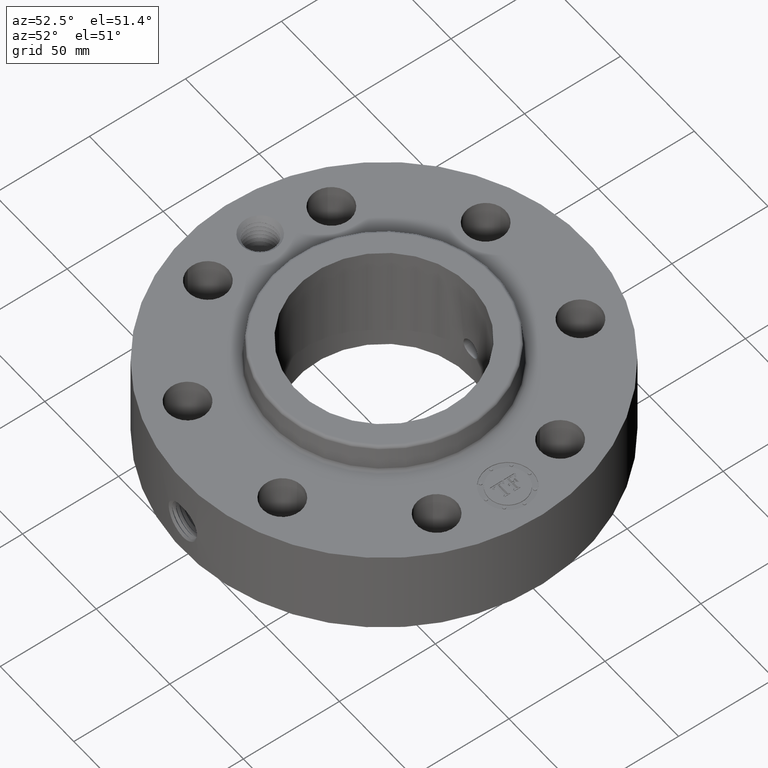
[diagram: clean part render]
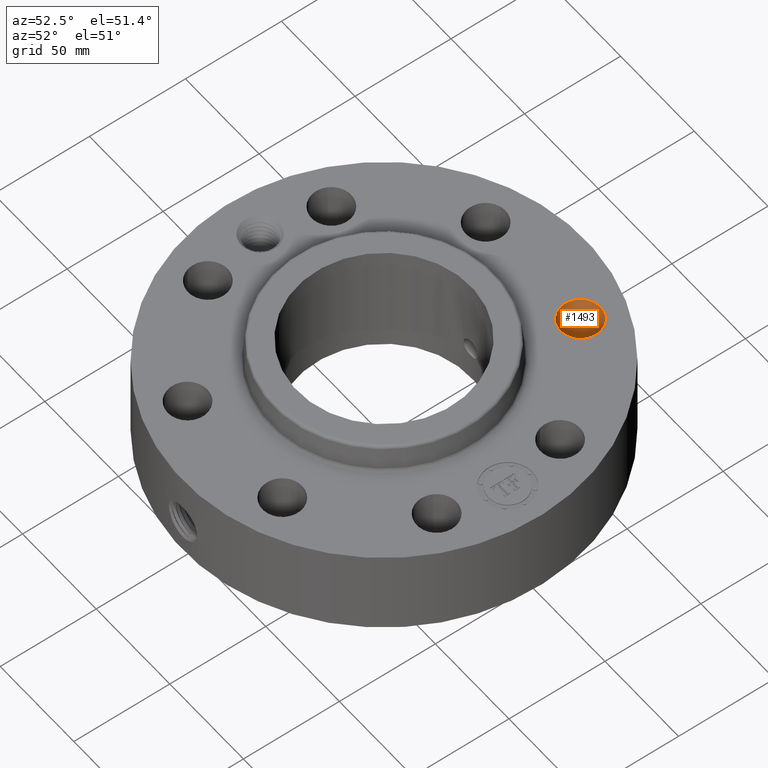
[diagram: same view with one face highlighted and labeled with its STEP entity id]
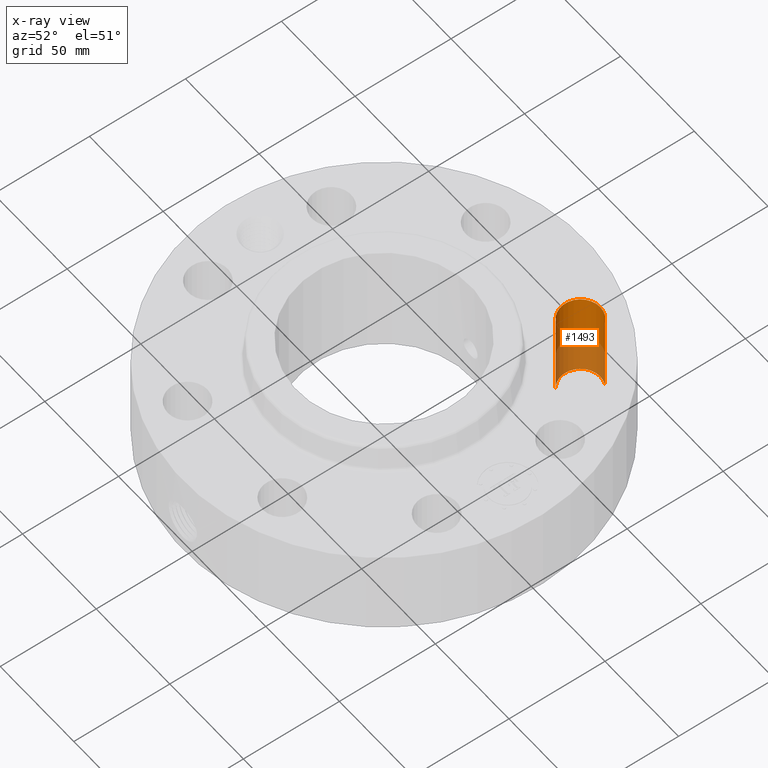
[diagram: x-ray of the same camera — body ghosted, the highlighted face saturated]
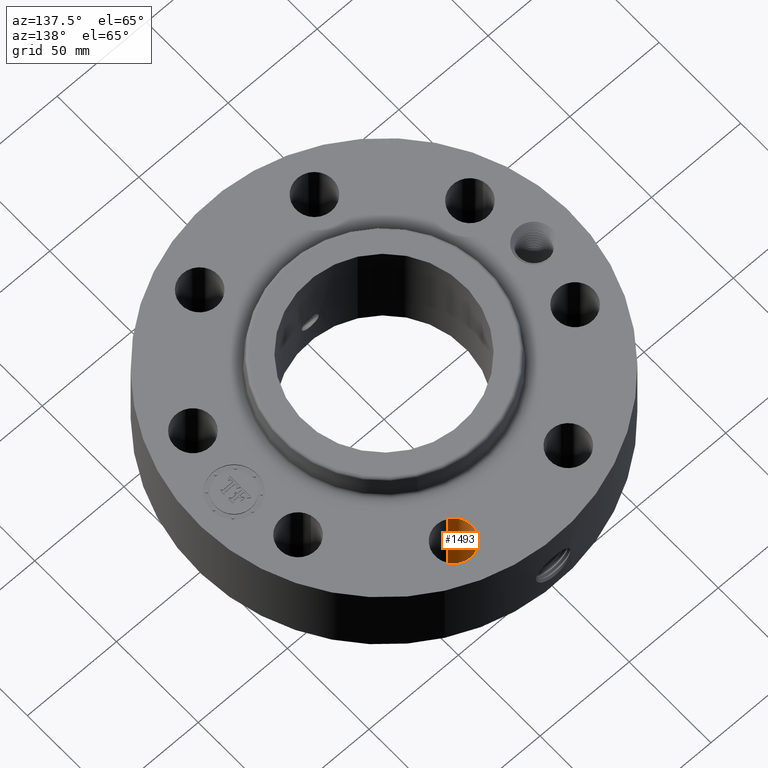
[diagram: same view with one face highlighted and labeled with its STEP entity id]
A machine part, auxiliary view. The second image highlights one B-rep face of the part: STEP entity #1493.
The next image is the same camera in x-ray: the body ghosted, the highlighted face saturated — about 46% of this face is hidden behind the body in this view.
A second angle (auxiliary view) of the same face is appended — the face is thin or edge-on in the first view.
In plain terms, the highlighted cylindrical surface (edge-blend (fillet) strip) has radius 10.287 mm, axis along (0, 0, -1).
Its self-contained STEP definition (entity closure, byte-faithful):
#332=AXIS2_PLACEMENT_3D('Circle Axis2P3D',#330,#331,$) ;
#676=AXIS2_PLACEMENT_3D('Circle Axis2P3D',#674,#675,$) ;
#1475=AXIS2_PLACEMENT_3D('Cylinder Axis2P3D',#1472,#1473,#1474) ;
#330=CARTESIAN_POINT('Axis2P3D Location',(1.26668216113,3.05804125262,0.)) ;
#334=CARTESIAN_POINT('Vertex',(1.072514818,2.70262031506,0.)) ;
#336=CARTESIAN_POINT('Vertex',(1.46084950427,3.41346219019,0.)) ;
#669=CARTESIAN_POINT('Vertex',(1.46084950427,3.41346219019,1.81300000001)) ;
#671=CARTESIAN_POINT('Vertex',(1.072514818,2.70262031506,1.81300000001)) ;
#674=CARTESIAN_POINT('Axis2P3D Location',(1.26668216113,3.05804125262,1.81300000001)) ;
#1472=CARTESIAN_POINT('Axis2P3D Location',(1.26668216113,3.05804125262,1.80906299213)) ;
#1477=CARTESIAN_POINT('Line Origine',(1.072514818,2.70262031506,0.906500000004)) ;
#1482=CARTESIAN_POINT('Line Origine',(1.46084950427,3.41346219019,0.906500000004)) ;
#331=DIRECTION('Axis2P3D Direction',(0.,0.,-0.0393700787402)) ;
#675=DIRECTION('Axis2P3D Direction',(0.,0.,-0.0393700787402)) ;
#1473=DIRECTION('Axis2P3D Direction',(0.,0.,-0.0393700787402)) ;
#1474=DIRECTION('Axis2P3D XDirection',(0.0188750212049,0.0345504945626,0.)) ;
#1478=DIRECTION('Vector Direction',(0.,0.,-0.0393700787402)) ;
#1483=DIRECTION('Vector Direction',(0.,0.,-0.0393700787402)) ;
#1479=VECTOR('Line Direction',#1478,0.0393700787402) ;
#1484=VECTOR('Line Direction',#1483,0.0393700787402) ;
#1488=ORIENTED_EDGE('',*,*,#1481,.F.) ;
#1489=ORIENTED_EDGE('',*,*,#338,.T.) ;
#1490=ORIENTED_EDGE('',*,*,#1486,.T.) ;
#1491=ORIENTED_EDGE('',*,*,#678,.F.) ;
#1493=ADVANCED_FACE('PartBody',(#1492),#1476,.F.) ;
#333=CIRCLE('generated circle',#332,0.405000000002) ;
#677=CIRCLE('generated circle',#676,0.405000000002) ;
#1476=CYLINDRICAL_SURFACE('generated cylinder',#1475,0.405000000002) ;
#338=EDGE_CURVE('',#335,#337,#333,.T.) ;
#678=EDGE_CURVE('',#672,#670,#677,.T.) ;
#1481=EDGE_CURVE('',#335,#672,#1480,.F.) ;
#1486=EDGE_CURVE('',#337,#670,#1485,.F.) ;
#1487=EDGE_LOOP('',(#1488,#1489,#1490,#1491)) ;
#1492=FACE_OUTER_BOUND('',#1487,.T.) ;
#1480=LINE('Line',#1477,#1479) ;
#1485=LINE('Line',#1482,#1484) ;
#335=VERTEX_POINT('',#334) ;
#337=VERTEX_POINT('',#336) ;
#670=VERTEX_POINT('',#669) ;
#672=VERTEX_POINT('',#671) ;